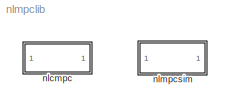
MODEL nlmpclib
KIND library
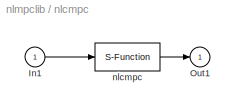
BLOCK [SubSystem] nlcmpc
  MaskCallbackString = |||||
  MaskDescription = Masked MATLAB function block calls nlcmpc, links CMPC and SIMULINK.
  MaskDisplay = disp('nlcmpc')
  MaskEnableString = on,on,on,on,on,on
  MaskHelp = This links CMPC from MPC-toolbox and SIMULINK. Time must be input into block as last variable in input vector. For information on mask inputs, type help CMPC.
  MaskIconFrame = on
  MaskIconOpaque = on
  MaskIconRotate = none
  MaskIconUnits = autoscale
  MaskPromptString = modelpd:|ryuwt:|mp:|yulim:|tfilter:|ud0:
  MaskStyleString = edit,edit,edit,edit,edit,edit
  MaskTunableValueString = on,on,on,on,on,on
  MaskType = CMPC-SIMULINK link
  MaskValueString = [model dmodel]|[r ywt uwt]|[m p]|[y_lim u_lim]|tfilter|[u0 d0]
  MaskVariables = modelpd=@1;ryuwt=@2;mp=@3;yulim=@4;tfilter=@5;ud0=@6;
  MaskVisibilityString = on,on,on,on,on,on
  Ports = [1, 1, 0, 0, 0]
  ShowPortLabels = on
  TreatAsAtomicUnit = off
BLOCK [Inport] nlcmpc/In1
  Interpolate = on
  Port = 1
BLOCK [Outport] nlcmpc/Out1
  InitialOutput = 0
  OutputWhenDisabled = held
  Port = 1
BLOCK [S-Function] nlcmpc/nlcmpc
  FunctionName = nlcmpc
  Parameters = modelpd,mp,tfilter,ryuwt,ud0,yulim
  PortCounts = []
  Ports = [1, 1, 0, 0, 0]
  SFunctionModules = ''
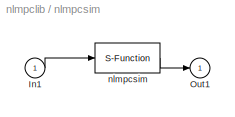
BLOCK [SubSystem] nlmpcsim
  MaskCallbackString = |||||
  MaskDescription = Masked MATLAB function block calls nlmpcsim, links MPCSIM and SIMULINK.
  MaskDisplay = disp('nlmpcsim')
  MaskEnableString = on,on,on,on,on,on
  MaskHelp = This links CMPC from MPC-toolbox and SIMULINK. Time must be input into block as last variable in input vector. For information on mask inputs, type help MPCSIM..
  MaskIconFrame = on
  MaskIconOpaque = on
  MaskIconRotate = none
  MaskIconUnits = autoscale
  MaskInitialization = modelpd=@1;Kmpc=@2;r=@3;usat=@4;tfilter=@5;ud0=@6;
  MaskPromptString = modelpd:|Kmpc:|r:|usat:|tfilter:|ud0:
  MaskStyleString = edit,edit,edit,edit,edit,edit
  MaskTunableValueString = on,on,on,on,on,on
  MaskType = MPCSIM-SIMULINK link
  MaskValueString = [model dmodel]|Kmpc|r|usat|tfilter|[u0 d0]
  MaskVisibilityString = on,on,on,on,on,on
  Ports = [1, 1, 0, 0, 0]
  ShowPortLabels = on
  TreatAsAtomicUnit = off
BLOCK [Inport] nlmpcsim/In1
  Interpolate = on
  Port = 1
BLOCK [Outport] nlmpcsim/Out1
  InitialOutput = 0
  OutputWhenDisabled = held
  Port = 1
BLOCK [S-Function] nlmpcsim/nlmpcsim
  FunctionName = nlmpcsim
  Parameters = modelpd,Kmpc,r,usat,tfilter,ud0
  PortCounts = []
  Ports = [1, 1, 0, 0, 0]
  SFunctionModules = ''
LINE nlcmpc/In1:1 -> nlcmpc/nlcmpc:1
LINE nlcmpc/nlcmpc:1 -> nlcmpc/Out1:1
LINE nlmpcsim/In1:1 -> nlmpcsim/nlmpcsim:1
LINE nlmpcsim/nlmpcsim:1 -> nlmpcsim/Out1:1
